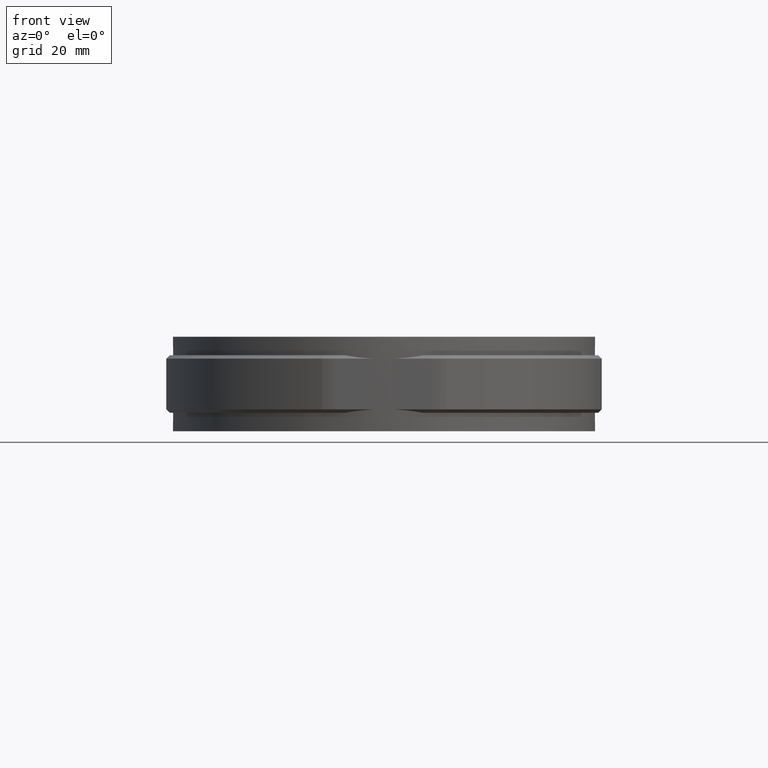
[diagram: clean part render]
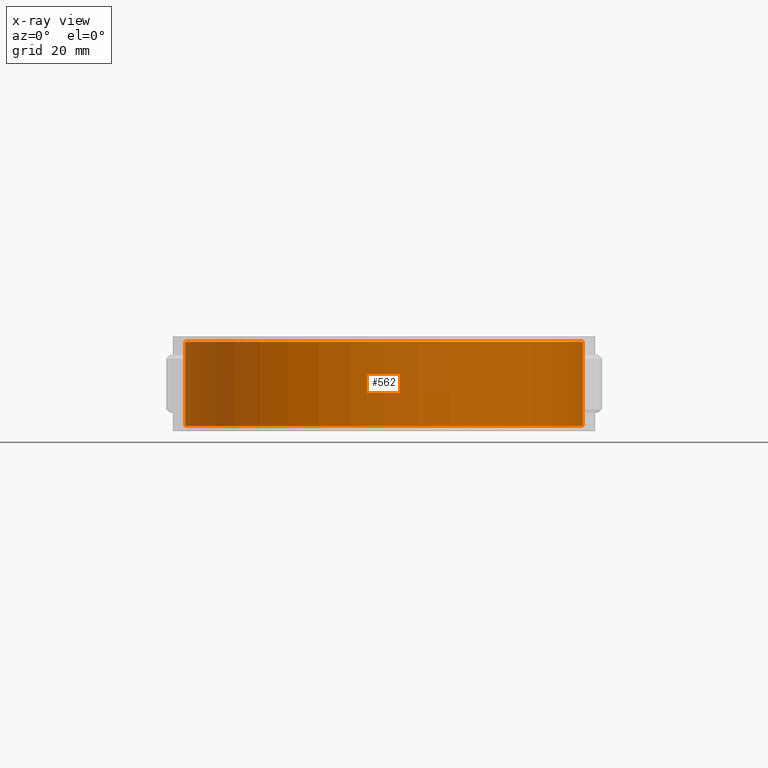
[diagram: x-ray — body ghosted, one internal face saturated and labeled with its STEP entity id]
A machine part, front view, then the same camera in x-ray: the body is ghosted and one INTERNAL B-rep face — a face not visible from any outside direction — is saturated and labeled: STEP entity #562.
In plain terms, the highlighted cylindrical surface (partial cylindrical patch) has radius 59 mm, axis along (0, 0, -1).
Its self-contained STEP definition (entity closure, byte-faithful):
#562 = ADVANCED_FACE( '', ( #1037 ), #1038, .T. );
#1037 = FACE_OUTER_BOUND( '', #2356, .T. );
#1038 = CYLINDRICAL_SURFACE( '', #2357, 59.0000000000000 );
#2356 = EDGE_LOOP( '', ( #4926, #4927, #4928, #4929 ) );
#2357 = AXIS2_PLACEMENT_3D( '', #4930, #4931, #4932 );
#4926 = ORIENTED_EDGE( '', *, *, #7279, .F. );
#4927 = ORIENTED_EDGE( '', *, *, #7276, .F. );
#4928 = ORIENTED_EDGE( '', *, *, #7280, .T. );
#4929 = ORIENTED_EDGE( '', *, *, #7281, .T. );
#4930 = CARTESIAN_POINT( '', ( 2.60208521396521E-015, 3.46944695195361E-014, -14.0000000000000 ) );
#4931 = DIRECTION( '', ( 0.000000000000000, 0.000000000000000, -1.00000000000000 ) );
#4932 = DIRECTION( '', ( -0.0847457627118643, -0.996402607233835, 0.000000000000000 ) );
#7276 = EDGE_CURVE( '', #8455, #8456, #8457, .T. );
#7279 = EDGE_CURVE( '', #8456, #8460, #8461, .T. );
#7280 = EDGE_CURVE( '', #8455, #8462, #8463, .T. );
#7281 = EDGE_CURVE( '', #8462, #8460, #8464, .T. );
#8455 = VERTEX_POINT( '', #12282 );
#8456 = VERTEX_POINT( '', #12283 );
#8457 = LINE( '', #12284, #12285 );
#8460 = VERTEX_POINT( '', #12288 );
#8461 = CIRCLE( '', #12289, 59.0000000000000 );
#8462 = VERTEX_POINT( '', #12290 );
#8463 = CIRCLE( '', #12291, 59.0000000000000 );
#8464 = LINE( '', #12292, #12293 );
#12282 = CARTESIAN_POINT( '', ( -6.66129032258065, 58.6227533577049, -12.5000000000000 ) );
#12283 = CARTESIAN_POINT( '', ( -6.66129032258066, 58.6227533577048, 12.5000000000000 ) );
#12284 = CARTESIAN_POINT( '', ( -6.66129032258065, 58.6227533577049, -14.0000000000000 ) );
#12285 = VECTOR( '', #14207, 1000.00000000000 );
#12288 = CARTESIAN_POINT( '', ( 6.66129032258059, 58.6227533577049, 12.5000000000000 ) );
#12289 = AXIS2_PLACEMENT_3D( '', #14214, #14215, #14216 );
#12290 = CARTESIAN_POINT( '', ( 6.66129032258060, 58.6227533577048, -12.5000000000000 ) );
#12291 = AXIS2_PLACEMENT_3D( '', #14217, #14218, #14219 );
#12292 = CARTESIAN_POINT( '', ( 6.66129032258060, 58.6227533577048, -14.0000000000000 ) );
#12293 = VECTOR( '', #14220, 1000.00000000000 );
#14207 = DIRECTION( '', ( 0.000000000000000, 0.000000000000000, 1.00000000000000 ) );
#14214 = CARTESIAN_POINT( '', ( -3.46944695195361E-015, 2.77555756156289E-014, 12.5000000000000 ) );
#14215 = DIRECTION( '', ( 0.000000000000000, 0.000000000000000, 1.00000000000000 ) );
#14216 = DIRECTION( '', ( 1.00000000000000, -4.16333634234434E-017, 0.000000000000000 ) );
#14217 = CARTESIAN_POINT( '', ( -3.46944695195361E-015, 2.77555756156289E-014, -12.5000000000000 ) );
#14218 = DIRECTION( '', ( 0.000000000000000, 0.000000000000000, 1.00000000000000 ) );
#14219 = DIRECTION( '', ( 1.00000000000000, -4.16333634234434E-017, 0.000000000000000 ) );
#14220 = DIRECTION( '', ( 0.000000000000000, 0.000000000000000, 1.00000000000000 ) );